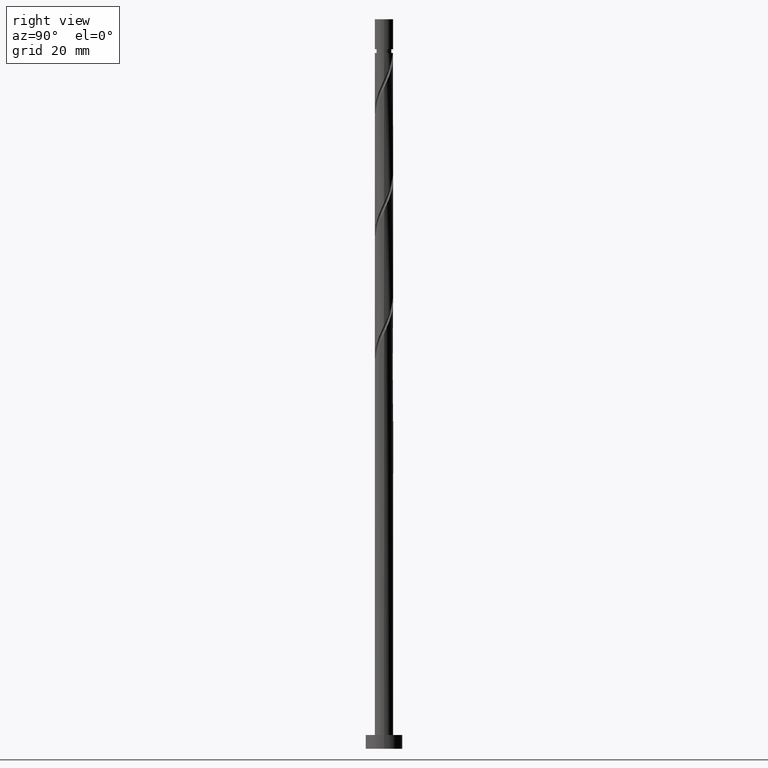
[diagram: clean part render]
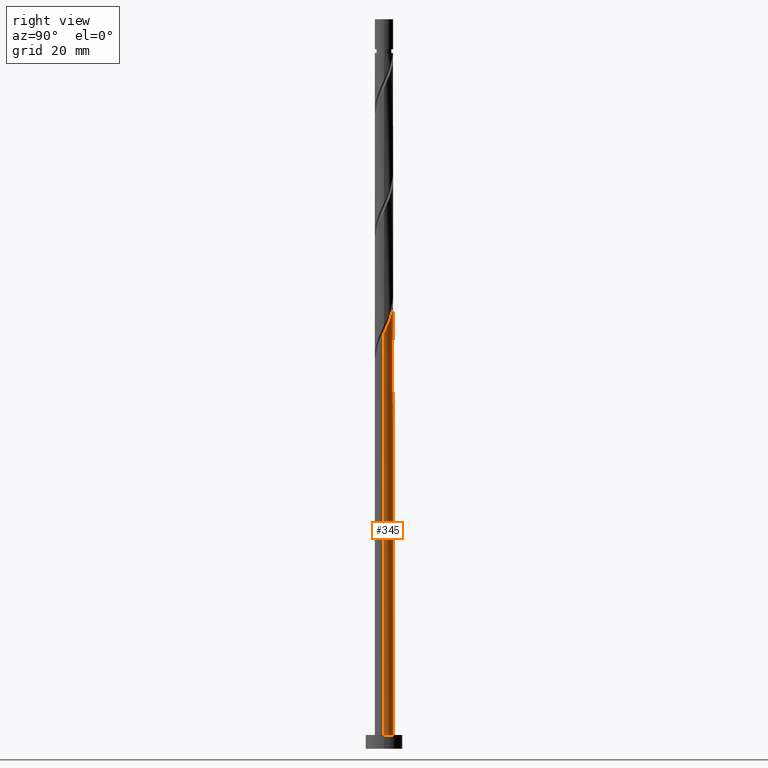
[diagram: same view with one face highlighted and labeled with its STEP entity id]
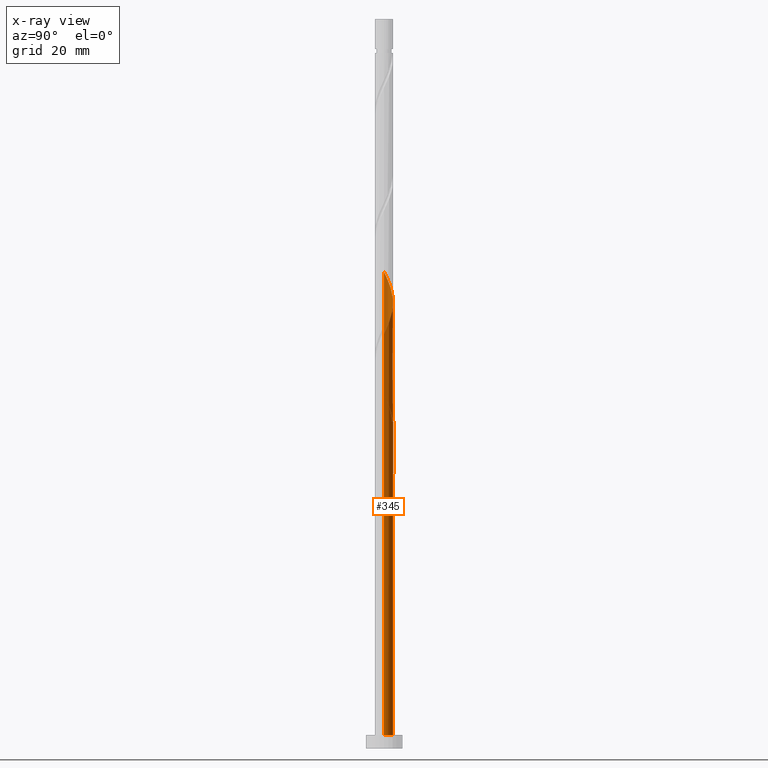
[diagram: x-ray of the same camera — body ghosted, the highlighted face saturated]
A machine part, right view. The second image highlights one B-rep face of the part: STEP entity #345.
The next image is the same camera in x-ray: the body ghosted, the highlighted face saturated — about 0% of this face is hidden behind the body in this view.
In plain terms, the highlighted cylindrical surface (edge-blend (fillet) strip) has radius 2 mm, axis along (-0, -0, -1).
Its self-contained STEP definition (entity closure, byte-faithful):
#3 = CARTESIAN_POINT ( 'NONE',  ( 2.000000000000003109, 0.05755105304765217866, 90.27554295606900325 ) ) ;
#57 = VECTOR ( 'NONE', #486, 1000.000000000000000 ) ;
#60 = CARTESIAN_POINT ( 'NONE',  ( -1.996690616564939846, 0.1150068768444769407, 78.27562670337896122 ) ) ;
#86 = VERTEX_POINT ( 'NONE', #1055 ) ;
#87 =( BOUNDED_CURVE ( )  B_SPLINE_CURVE ( 2, ( #316, #1580, #60, #798, #176, #1196, #414, #433, #930, #959, #1458, #946, #1573, #299, #568 ),
 .UNSPECIFIED., .F., .T. ) 
 B_SPLINE_CURVE_WITH_KNOTS ( ( 3, 2, 2, 2, 2, 2, 2, 3 ),
 ( 0.9295252162417516617, 0.9318181818181817677, 0.9431818181818182323, 0.9545454545454545858, 0.9659090909090909394, 0.9772727272727272929, 0.9886363636363636465, 1.000000000000000000 ),
 .UNSPECIFIED. ) 
 CURVE ( )  GEOMETRIC_REPRESENTATION_ITEM ( )  RATIONAL_B_SPLINE_CURVE ( ( 0.9061101570135621230, 0.9072237824201442313, 0.9090909090909213841, 0.8998376744372236224, 0.9090909090909213841, 0.8998376744372236224, 0.9090909090909213841, 0.8998376744372236224, 0.9090909090909213841, 0.8998376744372236224, 0.9090909090909213841, 0.8998376744372236224, 0.9090909090909213841, 0.8998376744372236224, 0.9090909090909213841 ) ) 
 REPRESENTATION_ITEM ( '' )  );
#90 = CARTESIAN_POINT ( 'NONE',  ( -1.188337955536409307, 1.634179211325361258, 72.82108124883346534 ) ) ;
#99 = CARTESIAN_POINT ( 'NONE',  ( -0.3979949748426479528, 1.960000000000002629, 97.66956609731832373 ) ) ;
#149 = FACE_OUTER_BOUND ( 'NONE', #1469, .T. ) ;
#176 = CARTESIAN_POINT ( 'NONE',  ( -1.883409435608316418, 0.6728810428757543427, 77.06350549125771465 ) ) ;
#182 = ORIENTED_EDGE ( 'NONE', *, *, #1541, .F. ) ;
#195 = EDGE_CURVE ( 'NONE', #1107, #1359, #87, .T. ) ;
#207 = VECTOR ( 'NONE', #1134, 1000.000000000000000 ) ;
#223 = DIRECTION ( 'NONE',  ( 1.000000000000000000, 0.000000000000000000, 0.000000000000000000 ) ) ;
#225 = DIRECTION ( 'NONE',  ( 0.000000000000000000, -0.000000000000000000, -1.000000000000000000 ) ) ;
#241 = CARTESIAN_POINT ( 'NONE',  ( -2.000000000000002665, 0.2290578547702527279, 103.0008183317127930 ) ) ;
#260 = CARTESIAN_POINT ( 'NONE',  ( -0.6798004310727966404, 1.902776961498554797, 98.27562670337891859 ) ) ;
#268 = CIRCLE ( 'NONE', #478, 2.000000000000000000 ) ;
#299 = CARTESIAN_POINT ( 'NONE',  ( 0.1161895186125003337, 2.017223038501447796, 71.60896003671227561 ) ) ;
#316 = CARTESIAN_POINT ( 'NONE',  ( -2.000000000000000000, 1.734991201605581417E-15, 78.51902057661922640 ) ) ;
#325 = CARTESIAN_POINT ( 'NONE',  ( -0.9340691933046025852, 1.768478086411957584, 72.21502064277289890 ) ) ;
#340 = VERTEX_POINT ( 'NONE', #1313 ) ;
#345 = ADVANCED_FACE ( 'NONE', ( #149 ), #1188, .T. ) ;
#349 = CARTESIAN_POINT ( 'NONE',  ( -1.948211798543802775, 0.4521844623765091109, 75.85138427913649650 ) ) ;
#351 = CARTESIAN_POINT ( 'NONE',  ( 1.786663747202085650, 0.9436744384215545178, 92.21502064277289890 ) ) ;
#354 = CARTESIAN_POINT ( 'NONE',  ( -2.000000000000003109, 9.998634640287257072E-15, 76.82011161801742105 ) ) ;
#360 = CARTESIAN_POINT ( 'NONE',  ( -1.600603406160407305, 1.233189980288575738, 74.03320246095471191 ) ) ;
#372 = CIRCLE ( 'NONE', #1501, 2.000000000000000000 ) ;
#387 = CARTESIAN_POINT ( 'NONE',  ( 0.1703224295138034972, 1.992734370156877821, 96.45744488519711979 ) ) ;
#414 = CARTESIAN_POINT ( 'NONE',  ( -1.617545623245911557, 1.176242388590886367, 75.85138427913652492 ) ) ;
#433 = CARTESIAN_POINT ( 'NONE',  ( -1.448427499289741682, 1.408810338760219549, 75.24532367307588743 ) ) ;
#460 = CARTESIAN_POINT ( 'NONE',  ( -0.3979949748426479528, 1.960000000000003073, 71.00289943065168075 ) ) ;
#470 = ORIENTED_EDGE ( 'NONE', *, *, #766, .T. ) ;
#476 = CARTESIAN_POINT ( 'NONE',  ( -2.000000000000003109, 9.998634640287257072E-15, 76.82011161801740684 ) ) ;
#478 = AXIS2_PLACEMENT_3D ( 'NONE', #1120, #1010, #223 ) ;
#486 = DIRECTION ( 'NONE',  ( -0.000000000000000000, -0.000000000000000000, -1.000000000000000000 ) ) ;
#496 = CARTESIAN_POINT ( 'NONE',  ( -2.000000000000000000, 0.000000000000000000, 158.3300000000000125 ) ) ;
#508 = CARTESIAN_POINT ( 'NONE',  ( 1.220637884402356654, 1.584311571365226046, 94.03320246095468349 ) ) ;
#511 = CARTESIAN_POINT ( 'NONE',  ( 2.000000000000000000, 2.449293598294705921E-16, 158.3300000000000125 ) ) ;
#516 = CARTESIAN_POINT ( 'NONE',  ( 2.000000000000003553, 1.046977449244738821E-15, 90.15344495135077807 ) ) ;
#541 = CARTESIAN_POINT ( 'NONE',  ( -2.000000000000000000, 1.734991201605581417E-15, 78.51902057661922640 ) ) ;
#568 = CARTESIAN_POINT ( 'NONE',  ( 0.3979949748426485634, 1.959999999999999520, 71.00289943065169496 ) ) ;
#610 = DIRECTION ( 'NONE',  ( -0.000000000000000000, -0.000000000000000000, -1.000000000000000000 ) ) ;
#611 = CARTESIAN_POINT ( 'NONE',  ( -1.394470680848407751, 1.433684595806967943, 100.0938085215607458 ) ) ;
#619 = CARTESIAN_POINT ( 'NONE',  ( 1.883409435608319304, 0.6728810428757545647, 91.60896003671226140 ) ) ;
#626 = VERTEX_POINT ( 'NONE', #1125 ) ;
#634 = DIRECTION ( 'NONE',  ( -1.000000000000000000, 0.000000000000000000, 0.000000000000000000 ) ) ;
#642 = CARTESIAN_POINT ( 'NONE',  ( -0.1161895186124998758, 2.017223038501451349, 97.06350549125771465 ) ) ;
#675 = ORIENTED_EDGE ( 'NONE', *, *, #1523, .F. ) ;
#692 =( BOUNDED_CURVE ( )  B_SPLINE_CURVE ( 2, ( #460, #1482, #325, #90, #1634, #360, #724, #1646, #349, #872, #476 ),
 .UNSPECIFIED., .F., .T. ) 
 B_SPLINE_CURVE_WITH_KNOTS ( ( 3, 2, 2, 2, 2, 3 ),
 ( 0.000000000000000000, 0.01136363636363635354, 0.02272727272727270709, 0.03409090909090906063, 0.04545454545454541417, 0.05452521624175097475 ),
 .UNSPECIFIED. ) 
 CURVE ( )  GEOMETRIC_REPRESENTATION_ITEM ( )  RATIONAL_B_SPLINE_CURVE ( ( 0.9090909090909289336, 0.8998376744372310609, 0.9090909090909289336, 0.8998376744372310609, 0.9090909090909289336, 0.8998376744372310609, 0.9090909090909289336, 0.8998376744372310609, 0.9090909090909289336, 0.9017048011080088799, 0.9061101570135690064 ) ) 
 REPRESENTATION_ITEM ( '' )  );
#716 = VERTEX_POINT ( 'NONE', #744 ) ;
#724 = CARTESIAN_POINT ( 'NONE',  ( -1.741900447066339952, 0.9827425057002954212, 74.63926306701529256 ) ) ;
#744 = CARTESIAN_POINT ( 'NONE',  ( -2.000000000000000000, 0.000000000000000000, 3.000000000000000000 ) ) ;
#758 = VERTEX_POINT ( 'NONE', #354 ) ;
#759 = CARTESIAN_POINT ( 'NONE',  ( 1.980155124014554291, 0.4020876473299550002, 91.00289943065170917 ) ) ;
#766 = EDGE_CURVE ( 'NONE', #86, #1455, #1258, .T. ) ;
#768 = CARTESIAN_POINT ( 'NONE',  ( -0.9340691933046025852, 1.768478086411957584, 98.88168730943948503 ) ) ;
#798 = CARTESIAN_POINT ( 'NONE',  ( -1.980155124014550738, 0.4020876473299550002, 77.66956609731832373 ) ) ;
#799 = DIRECTION ( 'NONE',  ( -0.000000000000000000, -0.000000000000000000, -1.000000000000000000 ) ) ;
#825 = DIRECTION ( 'NONE',  ( -1.000000000000000000, 0.000000000000000000, 0.000000000000000000 ) ) ;
#837 = CARTESIAN_POINT ( 'NONE',  ( 0.3979949748426485634, 1.959999999999999520, 71.00289943065168075 ) ) ;
#864 = LINE ( 'NONE', #1265, #57 ) ;
#872 = CARTESIAN_POINT ( 'NONE',  ( -2.000000000000001776, 0.2290578547702545043, 76.33415166504612159 ) ) ;
#899 = CARTESIAN_POINT ( 'NONE',  ( 1.996690616564942955, 0.1150068768444763023, 90.39683882459104325 ) ) ;
#930 = CARTESIAN_POINT ( 'NONE',  ( -1.220637884402354434, 1.584311571365223825, 74.63926306701530677 ) ) ;
#946 = CARTESIAN_POINT ( 'NONE',  ( -0.4568343776401056489, 1.968245701812300963, 72.82108124883346534 ) ) ;
#959 = CARTESIAN_POINT ( 'NONE',  ( -0.9928482695149669635, 1.759812803970227657, 74.03320246095469770 ) ) ;
#987 = VECTOR ( 'NONE', #610, 1000.000000000000000 ) ;
#990 = CARTESIAN_POINT ( 'NONE',  ( -1.188337955536409307, 1.634179211325361258, 99.48774791550016516 ) ) ;
#1002 = LINE ( 'NONE', #496, #987 ) ;
#1004 = CARTESIAN_POINT ( 'NONE',  ( 0.7248413235775373886, 1.864029252891266530, 95.24532367307588743 ) ) ;
#1010 = DIRECTION ( 'NONE',  ( 0.000000000000000000, 0.000000000000000000, 1.000000000000000000 ) ) ;
#1012 = CARTESIAN_POINT ( 'NONE',  ( 0.4568343776401069811, 1.968245701812304072, 95.85138427913649650 ) ) ;
#1023 = ORIENTED_EDGE ( 'NONE', *, *, #1561, .F. ) ;
#1034 = CARTESIAN_POINT ( 'NONE',  ( 1.448427499289745013, 1.408810338760221104, 93.42714185489408862 ) ) ;
#1053 = EDGE_CURVE ( 'NONE', #626, #1359, #372, .T. ) ;
#1055 = CARTESIAN_POINT ( 'NONE',  ( 2.000000000000003553, 1.046977449244738821E-15, 90.15344495135077807 ) ) ;
#1056 = ORIENTED_EDGE ( 'NONE', *, *, #1053, .T. ) ;
#1087 = EDGE_CURVE ( 'NONE', #86, #340, #1167, .T. ) ;
#1107 = VERTEX_POINT ( 'NONE', #541 ) ;
#1120 = CARTESIAN_POINT ( 'NONE',  ( 0.000000000000000000, 0.000000000000000000, 3.000000000000000000 ) ) ;
#1125 = CARTESIAN_POINT ( 'NONE',  ( -0.3979949748426480083, 1.960000000000003073, 71.00289943065168075 ) ) ;
#1130 = CARTESIAN_POINT ( 'NONE',  ( -1.883197487972274375, 0.7322950311120159927, 101.9119903397425873 ) ) ;
#1134 = DIRECTION ( 'NONE',  ( -0.000000000000000000, -0.000000000000000000, -1.000000000000000000 ) ) ;
#1167 =( BOUNDED_CURVE ( )  B_SPLINE_CURVE ( 2, ( #516, #3, #899, #759, #619, #351, #1657, #1034, #508, #1255, #1004, #1012, #387, #642, #99, #260, #768, #990, #611, #1525, #1392, #1130, #1400, #241, #1509 ),
 .UNSPECIFIED., .F., .T. ) 
 B_SPLINE_CURVE_WITH_KNOTS ( ( 3, 2, 2, 2, 2, 2, 2, 2, 2, 2, 2, 2, 3 ),
 ( 0.1795252162417516062, 0.1818181818181817677, 0.1931818181818182323, 0.2045454545454545858, 0.2159090909090909394, 0.2272727272727272929, 0.2386363636363636465, 0.2500000000000000000, 0.2613636363636363535, 0.2727272727272727071, 0.2840909090909090606, 0.2954545454545454142, 0.3045252162417510511 ),
 .UNSPECIFIED. ) 
 CURVE ( )  GEOMETRIC_REPRESENTATION_ITEM ( )  RATIONAL_B_SPLINE_CURVE ( ( 0.9061101570135695615, 0.9072237824201516698, 0.9090909090909289336, 0.8998376744372310609, 0.9090909090909289336, 0.8998376744372310609, 0.9090909090909289336, 0.8998376744372310609, 0.9090909090909289336, 0.8998376744372310609, 0.9090909090909289336, 0.8998376744372310609, 0.9090909090909289336, 0.8998376744372310609, 0.9090909090909289336, 0.8998376744372310609, 0.9090909090909289336, 0.8998376744372310609, 0.9090909090909289336, 0.8998376744372310609, 0.9090909090909289336, 0.8998376744372310609, 0.9090909090909289336, 0.9017048011080087688, 0.9061101570135690064 ) ) 
 REPRESENTATION_ITEM ( '' )  );
#1181 = AXIS2_PLACEMENT_3D ( 'NONE', #1448, #799, #825 ) ;
#1188 = CYLINDRICAL_SURFACE ( 'NONE', #1181, 2.000000000000000000 ) ;
#1196 = CARTESIAN_POINT ( 'NONE',  ( -1.786663747202081876, 0.9436744384215537407, 76.45744488519714821 ) ) ;
#1214 = ORIENTED_EDGE ( 'NONE', *, *, #1087, .F. ) ;
#1255 = CARTESIAN_POINT ( 'NONE',  ( 0.9928482695149688508, 1.759812803970230544, 94.63926306701527835 ) ) ;
#1258 = LINE ( 'NONE', #511, #207 ) ;
#1260 = ORIENTED_EDGE ( 'NONE', *, *, #1588, .T. ) ;
#1265 = CARTESIAN_POINT ( 'NONE',  ( -2.000000000000000000, 0.000000000000000000, 158.3300000000000125 ) ) ;
#1313 = CARTESIAN_POINT ( 'NONE',  ( -2.000000000000003553, 4.419740517883147980E-15, 103.4867782846840925 ) ) ;
#1359 = VERTEX_POINT ( 'NONE', #837 ) ;
#1392 = CARTESIAN_POINT ( 'NONE',  ( -1.741900447066339952, 0.9827425057002954212, 101.3059297336819355 ) ) ;
#1400 = CARTESIAN_POINT ( 'NONE',  ( -1.948211798543802775, 0.4521844623765091109, 102.5180509458031537 ) ) ;
#1448 = CARTESIAN_POINT ( 'NONE',  ( 0.000000000000000000, 0.000000000000000000, 158.3300000000000125 ) ) ;
#1455 = VERTEX_POINT ( 'NONE', #1600 ) ;
#1458 = CARTESIAN_POINT ( 'NONE',  ( -0.7248413235775362784, 1.864029252891264088, 73.42714185489408862 ) ) ;
#1469 = EDGE_LOOP ( 'NONE', ( #1214, #470, #1260, #1023, #675, #1056, #1562, #182 ) ) ;
#1482 = CARTESIAN_POINT ( 'NONE',  ( -0.6798004310727966404, 1.902776961498554797, 71.60896003671227561 ) ) ;
#1501 = AXIS2_PLACEMENT_3D ( 'NONE', #1539, #225, #634 ) ;
#1509 = CARTESIAN_POINT ( 'NONE',  ( -2.000000000000003553, 4.419740517883147980E-15, 103.4867782846840925 ) ) ;
#1523 = EDGE_CURVE ( 'NONE', #626, #758, #692, .T. ) ;
#1525 = CARTESIAN_POINT ( 'NONE',  ( -1.600603406160407305, 1.233189980288575738, 100.6998691276213833 ) ) ;
#1539 = CARTESIAN_POINT ( 'NONE',  ( 0.000000000000000000, 0.000000000000000000, 71.00289943065169496 ) ) ;
#1541 = EDGE_CURVE ( 'NONE', #340, #1107, #864, .T. ) ;
#1561 = EDGE_CURVE ( 'NONE', #758, #716, #1002, .T. ) ;
#1562 = ORIENTED_EDGE ( 'NONE', *, *, #195, .F. ) ;
#1573 = CARTESIAN_POINT ( 'NONE',  ( -0.1703224295138027200, 1.992734370156874713, 72.21502064277291311 ) ) ;
#1580 = CARTESIAN_POINT ( 'NONE',  ( -1.999999999999999112, 0.05755105304765421870, 78.39692257190101543 ) ) ;
#1588 = EDGE_CURVE ( 'NONE', #1455, #716, #268, .T. ) ;
#1600 = CARTESIAN_POINT ( 'NONE',  ( 2.000000000000000000, 2.449293598294705921E-16, 3.000000000000000000 ) ) ;
#1634 = CARTESIAN_POINT ( 'NONE',  ( -1.394470680848407751, 1.433684595806967943, 73.42714185489408862 ) ) ;
#1646 = CARTESIAN_POINT ( 'NONE',  ( -1.883197487972274375, 0.7322950311120159927, 75.24532367307588743 ) ) ;
#1657 = CARTESIAN_POINT ( 'NONE',  ( 1.617545623245914443, 1.176242388590887478, 92.82108124883347955 ) ) ;